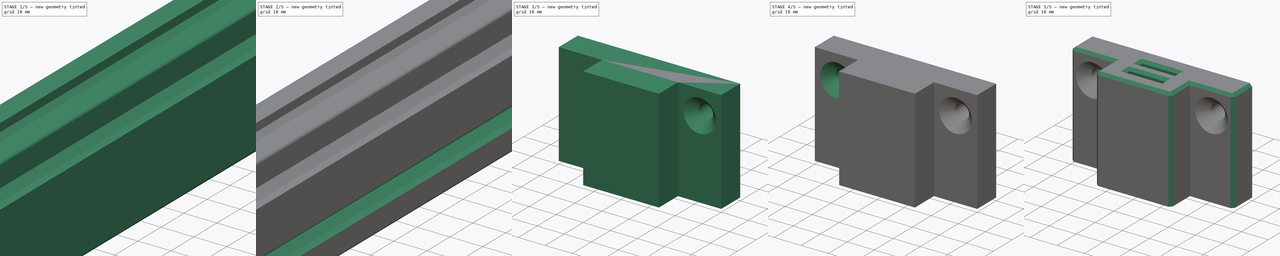
[diagram: build sequence overview — one tinted view per stage of 5, left to right]
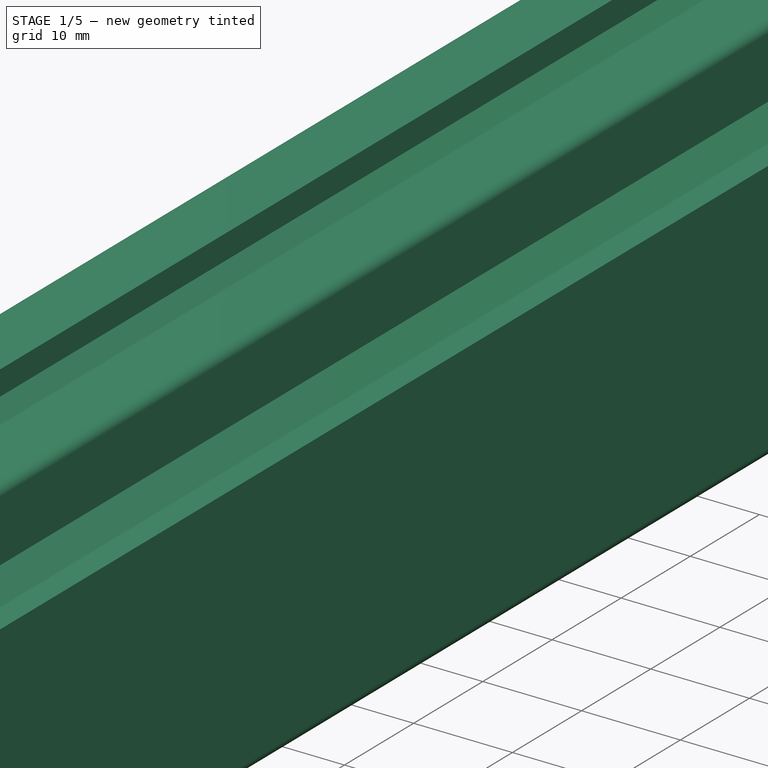
[diagram: stage 1 of 5 — iso view after this stage's code; geometry added in this stage tinted green]
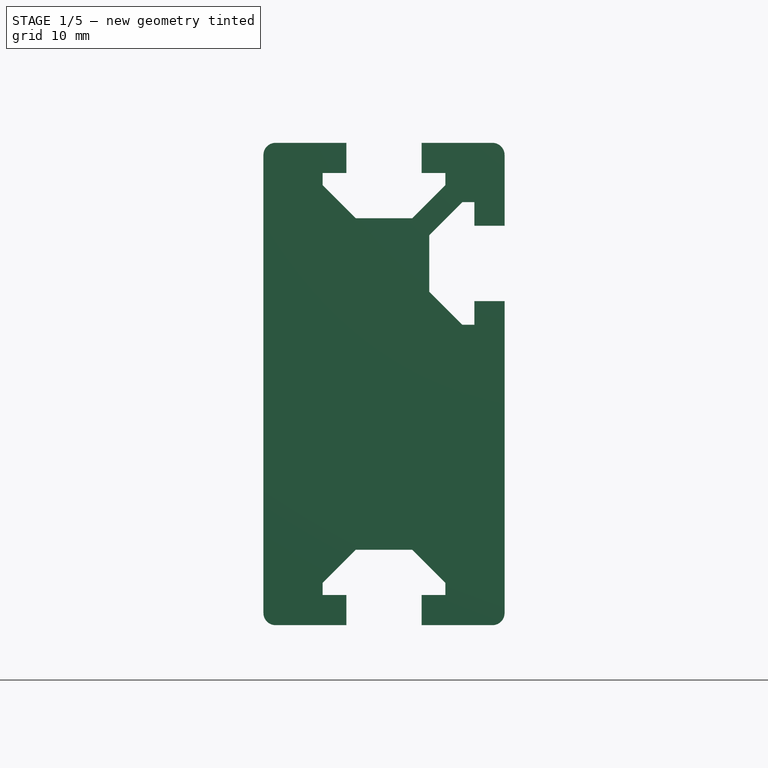
[diagram: stage 1 of 5 — front view after this stage's code; geometry added in this stage tinted green]
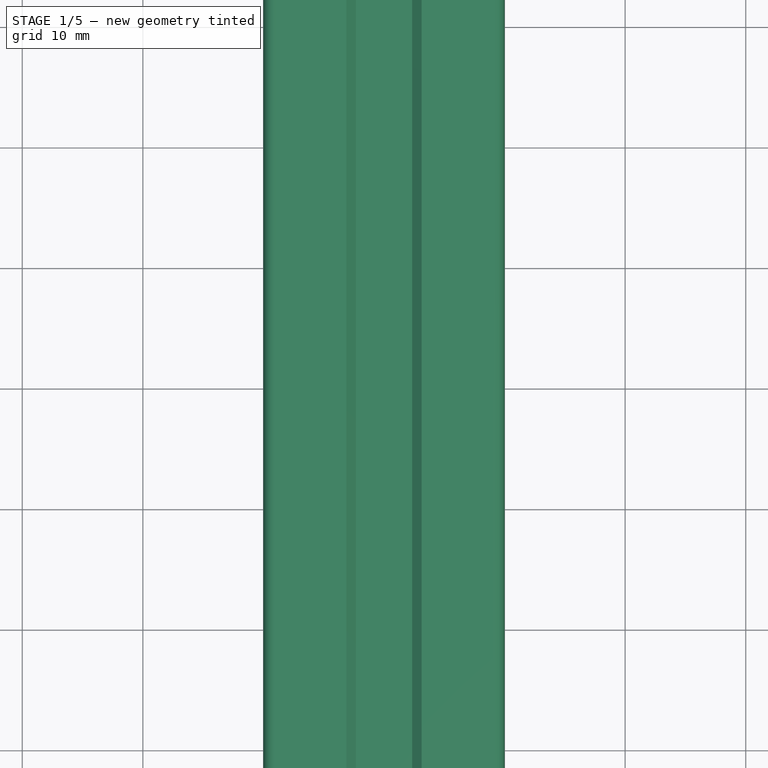
[diagram: stage 1 of 5 — top view after this stage's code; geometry added in this stage tinted green]
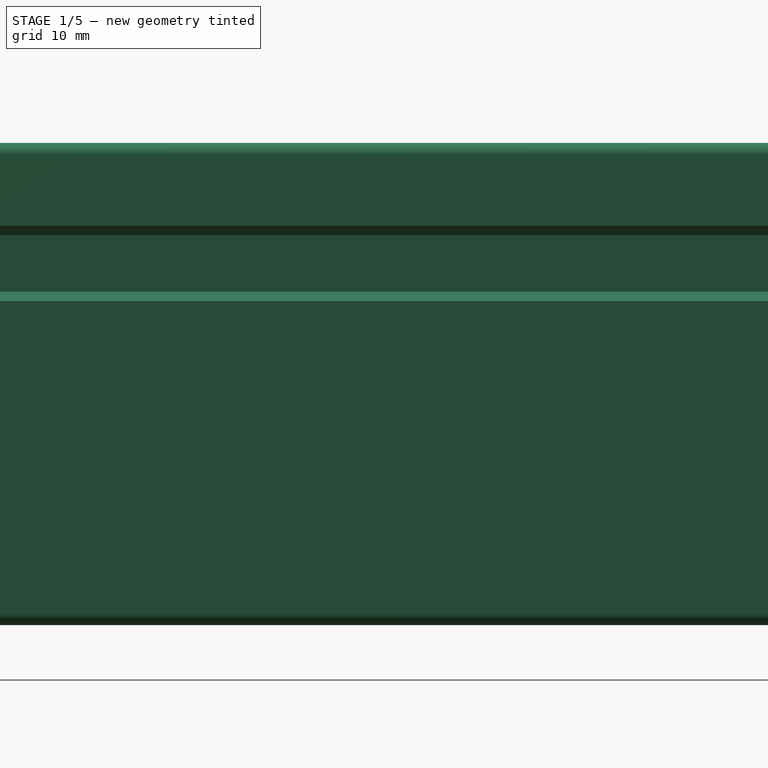
[diagram: stage 1 of 5 — right view after this stage's code; geometry added in this stage tinted green]
FCSTD DOCUMENT  (FreeCAD 1.0R39109 (Git))
Label: tool_holder
License: All rights reserved
LicenseURL: http://en.wikipedia.org/wiki/All_rights_reserved
objects: Sketcher::SketchObject×10, PartDesign::Pocket×6, PartDesign::Mirrored×5, PartDesign::Pad×3, PartDesign::LinearPattern×2, PartDesign::Body×2, PartDesign::Chamfer×2, PartDesign::MultiTransform×1, App::Part×1, PartDesign::SubShapeBinder×1, PartDesign::Hole×1
note: 75 computed .brp shape members not serialized (recipe doc carries the construction recipe); baked Part::Feature solids carry a one-line shape summary decoded from their .brp

FEATURE [Sketcher::SketchObject] Sketch010
  ArcFitTolerance = 0
  AttachmentSupport = -> [XZ_Plane011]
  FullyConstrained = true
  MakeInternals = false
  MapMode = 5
  Placement = pos=(0,0,0) rot=(1,0,0;1.5708rad)
  sketch-geometry (8):
    g0: LineSegment StartX=-9 StartY=20 StartZ=0 EndX=9 EndY=20 EndZ=0
    g1: LineSegment StartX=10 StartY=19 StartZ=0 EndX=10 EndY=-19 EndZ=0
    g2: LineSegment StartX=9 StartY=-20 StartZ=0 EndX=-9 EndY=-20 EndZ=0
    g3: LineSegment StartX=-10 StartY=-19 StartZ=0 EndX=-10 EndY=19 EndZ=0
    g4: ArcOfCircle CenterX=9 CenterY=19 CenterZ=0 NormalX=0 NormalY=0 NormalZ=1 AngleXU=0 Radius=1 StartAngle=-9e-16 EndAngle=1.5708
    g5: ArcOfCircle CenterX=9 CenterY=-19 CenterZ=0 NormalX=0 NormalY=0 NormalZ=1 AngleXU=0 Radius=1 StartAngle=4.71239 EndAngle=6.28319
    g6: ArcOfCircle CenterX=-9 CenterY=-19 CenterZ=0 NormalX=0 NormalY=0 NormalZ=1 AngleXU=0 Radius=1 StartAngle=3.14159 EndAngle=4.71239
    g7: ArcOfCircle CenterX=-9 CenterY=19 CenterZ=0 NormalX=0 NormalY=0 NormalZ=1 AngleXU=0 Radius=1 StartAngle=1.5708 EndAngle=3.14159
  constraints (18):
    c: Horizontal(g0)
    c: Horizontal(g2)
    c: Vertical(g1)
    c: Vertical(g3)
    c: Tangent(g0,g4) = 1.5708
    c: Tangent(g1,g4) = 1.5708
    c: Tangent(g1,g5) = 1.5708
    c: Tangent(g2,g5) = 1.5708
    c: Tangent(g2,g6) = 1.5708
    c: Tangent(g3,g6) = 1.5708
    c: Tangent(g3,g7) = 1.5708
    c: Tangent(g0,g7) = 1.5708
    c: Equal(g5,g6)
    c: Radius(g4) = 1
    c: DistanceX(g3,g1) = 20
    c: DistanceY(g2,g0) = 40
    c: Symmetric(g4,g7,g-2)
    c: Symmetric(g4,g5,g-1)
FEATURE [PartDesign::Pad] Pad004
  AllowMultiFace = false
  Direction = (0,-1,2e-16)
  Length = 300
  Length2 = 100
  Midplane = true
  Placement = pos=(0,0,0) rot=(1,0,0;1.5708rad)
  Profile = -> Sketch010
  Refine = true
  Suppressed = false
  Type = 0
FEATURE [Sketcher::SketchObject] Sketch013
  ArcFitTolerance = 0
  AttachmentSupport = -> [Pad004]
  ExternalGeometry = -> [Pad004]
  FullyConstrained = true
  MakeInternals = false
  MapMode = 5
  Placement = pos=(0,-150,0) rot=(1,0,0;1.5708rad)
  sketch-geometry (15):
    g0: LineSegment StartX=-3.125 StartY=20 StartZ=0 EndX=3.125 EndY=20 EndZ=0
    g1: LineSegment StartX=3.125 StartY=20 StartZ=0 EndX=3.125 EndY=17.5 EndZ=0
    g2: LineSegment StartX=-3.125 StartY=17.5 StartZ=0 EndX=-3.125 EndY=20 EndZ=0
    g3: LineSegment StartX=5.08579 StartY=17.5 StartZ=0 EndX=5.08579 EndY=16.5 EndZ=0
    g4: LineSegment StartX=-5.08579 StartY=16.5 StartZ=0 EndX=-5.08579 EndY=17.5 EndZ=0
    g5: LineSegment StartX=-5.08579 StartY=16.5 StartZ=0 EndX=-2.33579 EndY=13.75 EndZ=0
    g6: LineSegment StartX=-2.33579 StartY=13.75 StartZ=0 EndX=2.33579 EndY=13.75 EndZ=0
    g7: LineSegment StartX=2.33579 StartY=13.75 StartZ=0 EndX=5.08579 EndY=16.5 EndZ=0
    g8: LineSegment StartX=3.125 StartY=17.5 StartZ=0 EndX=5.08579 EndY=17.5 EndZ=0
    g9: LineSegment StartX=-3.125 StartY=17.5 StartZ=0 EndX=-5.08579 EndY=17.5 EndZ=0
    g10: LineSegment [constr] StartX=-3.125 StartY=17.5 StartZ=0 EndX=3.125 EndY=17.5 EndZ=0
    g11: LineSegment [constr] StartX=5.08579 StartY=16.5 StartZ=0 EndX=-5.08579 EndY=16.5 EndZ=0
    g12: LineSegment [constr] StartX=-9 StartY=19 StartZ=0 EndX=0 EndY=10 EndZ=0
    g13: LineSegment [constr] StartX=0 StartY=10 StartZ=0 EndX=9 EndY=19 EndZ=0
    g14: LineSegment [constr] StartX=5.08579 StartY=16.5 StartZ=0 EndX=5.79289 EndY=15.7929 EndZ=0
  constraints (41):
    c: Coincident(g0,g1)
    c: Coincident(g2,g0)
    c: Horizontal(g0)
    c: Vertical(g1)
    c: Vertical(g2)
    c: PointOnObject(g0,g-3)
    c: Vertical(g3)
    c: Vertical(g4)
    c: Coincident(g6,g5)
    c: Horizontal(g6)
    c: Coincident(g7,g6)
    c: Coincident(g7,g3)
    c: Coincident(g8,g1)
    c: Coincident(g8,g3)
    c: Coincident(g9,g2)
    c: Coincident(g9,g4)
    c: Horizontal(g8)
    c: Horizontal(g9)
    c: Coincident(g10,g2)
    c: Coincident(g10,g1)
    c: Coincident(g11,g3)
    c: Coincident(g11,g4)
    c: Horizontal(g11)
    c: DistanceX(g0,g0) = 6.25
    c: DistanceY(g1,g1) = 2.5
    c: DistanceY(g4,g4) = 1
    c: Coincident(g5,g4)
    c: DistanceY(g6,g0) = 6.25
    c: Coincident(g12,g-5)
    c: PointOnObject(g12,g-2)
    c: Coincident(g13,g12)
    c: Coincident(g13,g-4)
    c: DistanceY(g12,g-4) = 10
    c: Parallel(g13,g7)
    c: Parallel(g12,g5)
    c: Coincident(g14,g3)
    c: PointOnObject(g14,g13)
    c: Perpendicular(g7,g14)
    c: Distance(g14) = 1
    c: Equal(g8,g9)
    c: Symmetric(g1,g2,g-2)
FEATURE [PartDesign::Pocket] Pocket007
  AllowMultiFace = false
  BaseFeature = -> Pad004
  Direction = (0,1,-2e-16)
  Length = 5
  Length2 = 100
  Placement = pos=(0,0,0) rot=(1,0,0;1.5708rad)
  Profile = -> Sketch013
  Refine = true
  Suppressed = false
  Type = 1
FEATURE [PartDesign::Mirrored] Mirrored001
  BaseFeature = -> Pocket007
  MirrorPlane = -> XY_Plane011
  Originals = -> [Pocket007]
  Placement = pos=(0,0,0) rot=(1,0,0;1.5708rad)
  Refine = true
  Suppressed = false
  TransformMode = 0
FEATURE [Sketcher::SketchObject] Sketch012
  ArcFitTolerance = 0
  AttachmentSupport = -> [Mirrored001]
  ExternalGeometry = -> [Mirrored001]
  FullyConstrained = true
  MakeInternals = false
  MapMode = 5
  Placement = pos=(0,-150,0) rot=(1,0,0;1.5708rad)
  sketch-geometry (16):
    g0: LineSegment [constr] StartX=9 StartY=19 StartZ=0 EndX=0 EndY=10 EndZ=0
    g1: LineSegment StartX=10 StartY=13.125 StartZ=0 EndX=7.5 EndY=13.125 EndZ=0
    g2: LineSegment StartX=7.5 StartY=6.875 StartZ=0 EndX=10 EndY=6.875 EndZ=0
    g3: LineSegment StartX=10 StartY=6.875 StartZ=0 EndX=10 EndY=13.125 EndZ=0
    g4: LineSegment StartX=7.5 StartY=15.0858 StartZ=0 EndX=6.5 EndY=15.0858 EndZ=0
    g5: LineSegment StartX=6.5 StartY=4.91421 StartZ=0 EndX=7.5 EndY=4.91421 EndZ=0
    g6: LineSegment StartX=7.5 StartY=13.125 StartZ=0 EndX=7.5 EndY=15.0858 EndZ=0
    g7: LineSegment StartX=7.5 StartY=6.875 StartZ=0 EndX=7.5 EndY=4.91421 EndZ=0
    g8: LineSegment StartX=6.5 StartY=15.0858 StartZ=0 EndX=3.75 EndY=12.3358 EndZ=0
    g9: LineSegment StartX=3.75 StartY=12.3358 StartZ=0 EndX=3.75 EndY=7.66421 EndZ=0
    g10: LineSegment StartX=3.75 StartY=7.66421 StartZ=0 EndX=6.5 EndY=4.91421 EndZ=0
    g11: LineSegment [constr] StartX=7.5 StartY=6.875 StartZ=0 EndX=7.5 EndY=13.125 EndZ=0
    g12: LineSegment [constr] StartX=10 StartY=10 StartZ=0 EndX=3.75 EndY=10 EndZ=0
    g13: LineSegment [constr] StartX=6.5 StartY=15.0858 StartZ=0 EndX=5.79289 EndY=15.7929 EndZ=0
    g14: LineSegment [constr] StartX=0 StartY=10 StartZ=0 EndX=10 EndY=4.423e-13 EndZ=0
    g15: LineSegment [constr] StartX=3.75 StartY=7.66421 StartZ=0 EndX=3.04289 EndY=6.95711 EndZ=0
  constraints (45):
    c: Coincident(g0,g-4)
    c: PointOnObject(g0,g-2)
    c: Parallel(g-5,g0)
    c: Coincident(g2,g3)
    c: Coincident(g3,g1)
    c: Horizontal(g1)
    c: Horizontal(g2)
    c: Vertical(g3)
    c: PointOnObject(g1,g-3)
    c: Horizontal(g4)
    c: Horizontal(g5)
    c: Coincident(g6,g1)
    c: Coincident(g6,g4)
    c: Coincident(g7,g2)
    c: Coincident(g7,g5)
    c: Coincident(g9,g8)
    c: Vertical(g9)
    c: Coincident(g10,g9)
    c: Coincident(g11,g2)
    c: Coincident(g11,g1)
    c: Vertical(g6)
    c: Vertical(g7)
    c: Symmetric(g1,g2,g12)
    c: Symmetric(g8,g9,g12)
    c: Parallel(g8,g0)
    c: DistanceY(g3,g3) = 6.25
    c: DistanceX(g9,g2) = 6.25
    c: DistanceX(g4,g4) = 1
    c: Symmetric(g2,g1,g12)
    c: Coincident(g8,g4)
    c: Coincident(g10,g5)
    c: Equal(g4,g5)
    c: Equal(g6,g7)
    c: DistanceX(g1,g1) = 2.5
    c: Coincident(g13,g4)
    c: PointOnObject(g13,g0)
    c: Perpendicular(g13,g8)
    c: Distance(g13) = 1
    c: Coincident(g14,g0)
    c: PointOnObject(g14,g-3)
    c: Perpendicular(g0,g14)
    c: Coincident(g15,g9)
    c: PointOnObject(g15,g14)
    c: Perpendicular(g10,g15)
    c: Distance(g15) = 1
FEATURE [PartDesign::LinearPattern] LinearPattern002
  Direction = -> Sketch012 [V_Axis]
  Length = 20
  Mode = 0
  Occurrences = 2
  Offset = 20
  Placement = pos=(0,0,0) rot=(1,0,0;1.5708rad)
  Refine = true
  Reversed = true
  Suppressed = false
  TransformMode = 0
FEATURE [PartDesign::Mirrored] Mirrored002
  MirrorPlane = -> Sketch012 [V_Axis]
  Placement = pos=(0,0,0) rot=(1,0,0;1.5708rad)
  Refine = true
  Suppressed = false
  TransformMode = 0
FEATURE [PartDesign::Pocket] Pocket005
  AllowMultiFace = false
  BaseFeature = -> Mirrored001
  Direction = (0,1,-2e-16)
  Length = 5
  Length2 = 100
  Placement = pos=(0,0,0) rot=(1,0,0;1.5708rad)
  Profile = -> Sketch012
  Refine = true
  Suppressed = false
  Type = 1
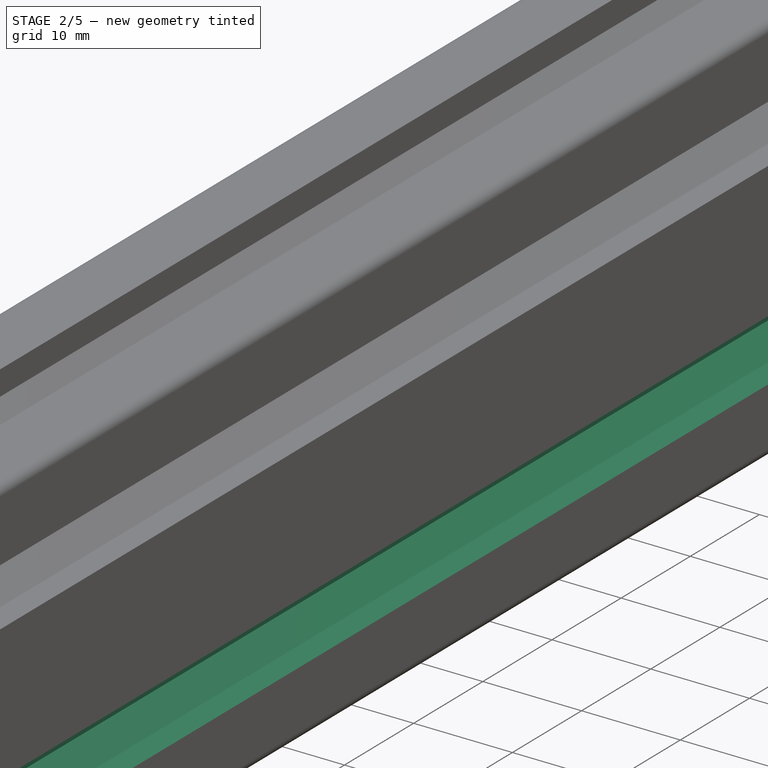
[diagram: stage 2 of 5 — iso view after this stage's code; geometry added in this stage tinted green]
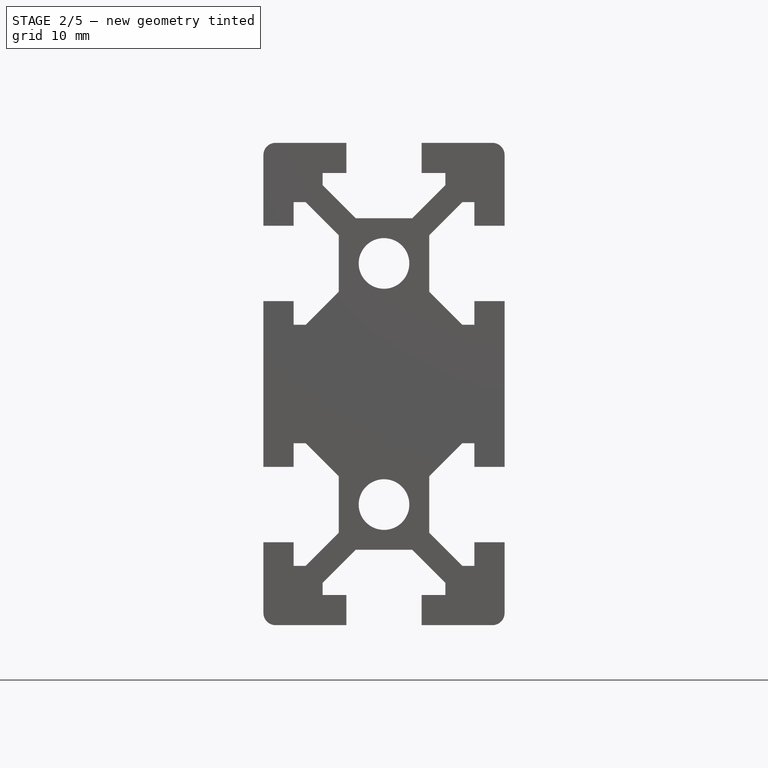
[diagram: stage 2 of 5 — front view after this stage's code; geometry added in this stage tinted green]
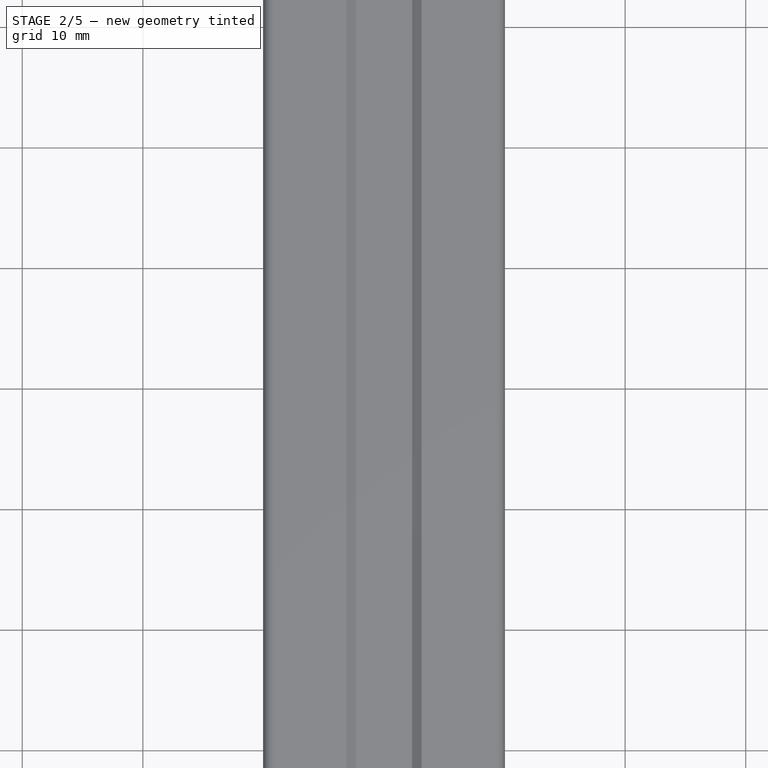
[diagram: stage 2 of 5 — top view after this stage's code; geometry added in this stage tinted green]
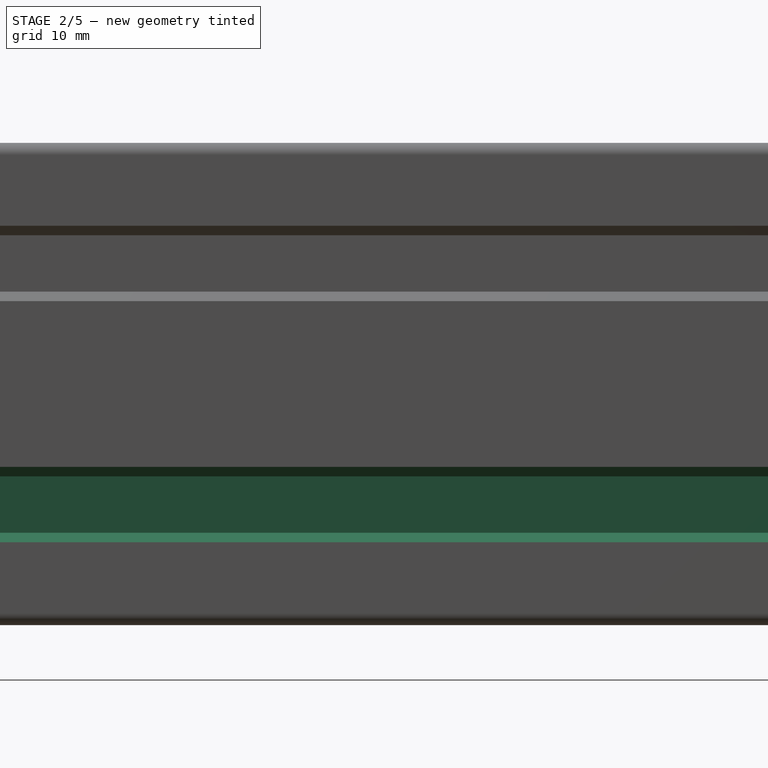
[diagram: stage 2 of 5 — right view after this stage's code; geometry added in this stage tinted green]
FEATURE [PartDesign::MultiTransform] MultiTransform
  BaseFeature = -> Pocket005
  Originals = -> [Pocket005]
  Placement = pos=(0,0,0) rot=(1,0,0;1.5708rad)
  Refine = true
  Suppressed = false
  TransformMode = 0
  Transformations = -> [LinearPattern002,Mirrored002]
FEATURE [Sketcher::SketchObject] Sketch009
  ArcFitTolerance = 0
  AttachmentSupport = -> [MultiTransform]
  ExternalGeometry = -> [MultiTransform]
  FullyConstrained = true
  MakeInternals = false
  MapMode = 5
  Placement = pos=(0,-150,0) rot=(1,0,0;1.5708rad)
  sketch-geometry (3):
    g0: LineSegment [constr] StartX=-9 StartY=19 StartZ=0 EndX=0 EndY=10 EndZ=0
    g1: LineSegment [constr] StartX=0 StartY=10 StartZ=0 EndX=9 EndY=19 EndZ=0
    g2: Circle CenterX=0 CenterY=10 CenterZ=0 NormalX=0 NormalY=0 NormalZ=1 AngleXU=0 Radius=2.1
  constraints (7):
    c: Coincident(g0,g-4)
    c: Coincident(g1,g0)
    c: Coincident(g1,g-3)
    c: PointOnObject(g0,g-2)
    c: Perpendicular(g0,g1)
    c: Coincident(g2,g0)
    c: Diameter(g2) = 4.2
FEATURE [PartDesign::Pocket] Pocket006
  AllowMultiFace = false
  BaseFeature = -> MultiTransform
  Direction = (0,1,-2e-16)
  Length = 5
  Length2 = 100
  Placement = pos=(0,0,0) rot=(1,0,0;1.5708rad)
  Profile = -> Sketch009
  Refine = true
  Suppressed = false
  Type = 1
FEATURE [PartDesign::Mirrored] Mirrored003
  BaseFeature = -> Pocket006
  MirrorPlane = -> Sketch009 [H_Axis]
  Originals = -> [Pocket006]
  Placement = pos=(0,0,0) rot=(1,0,0;1.5708rad)
  Refine = true
  Suppressed = false
  TransformMode = 0
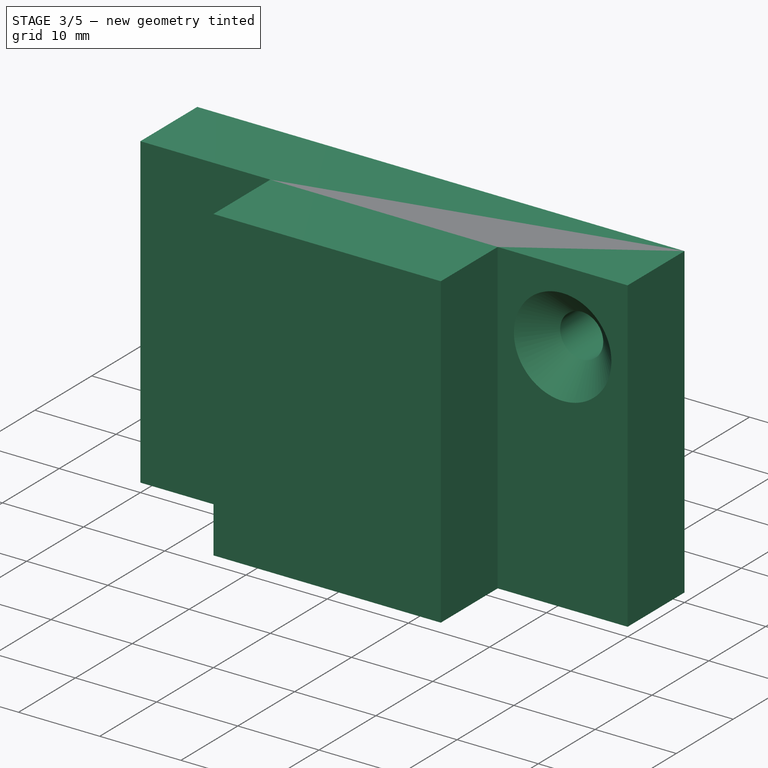
[diagram: stage 3 of 5 — iso view after this stage's code; geometry added in this stage tinted green]
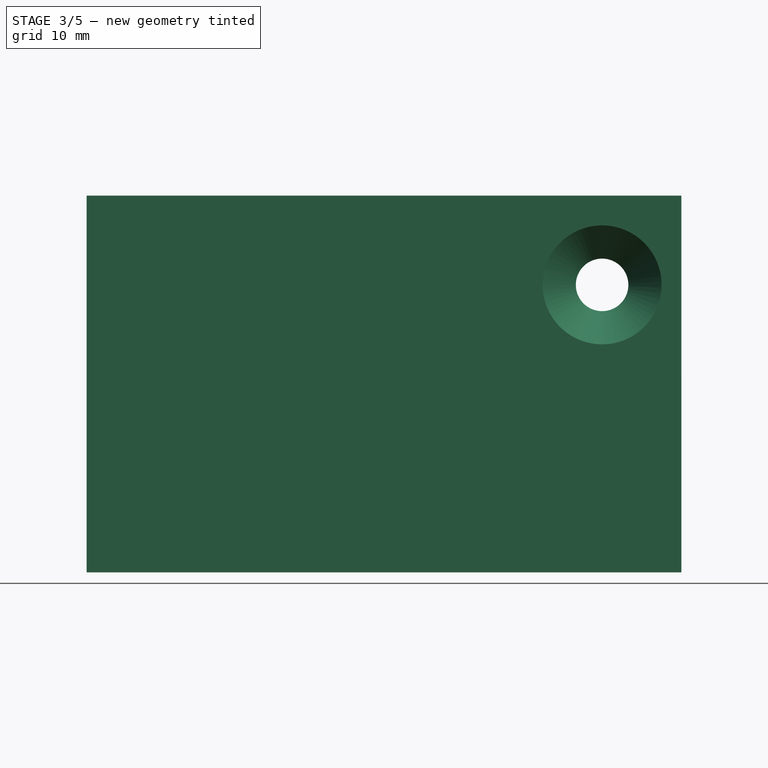
[diagram: stage 3 of 5 — front view after this stage's code; geometry added in this stage tinted green]
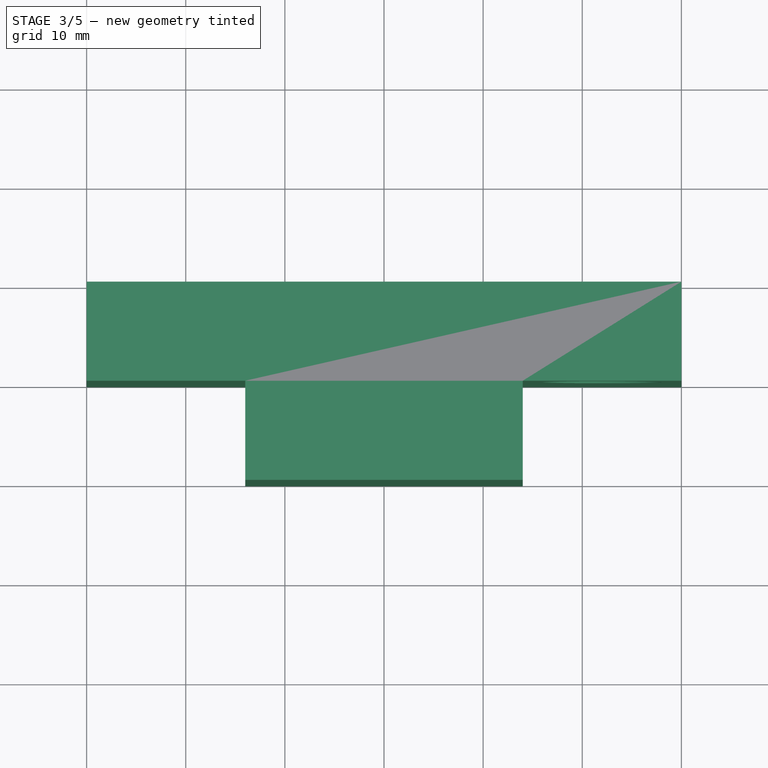
[diagram: stage 3 of 5 — top view after this stage's code; geometry added in this stage tinted green]
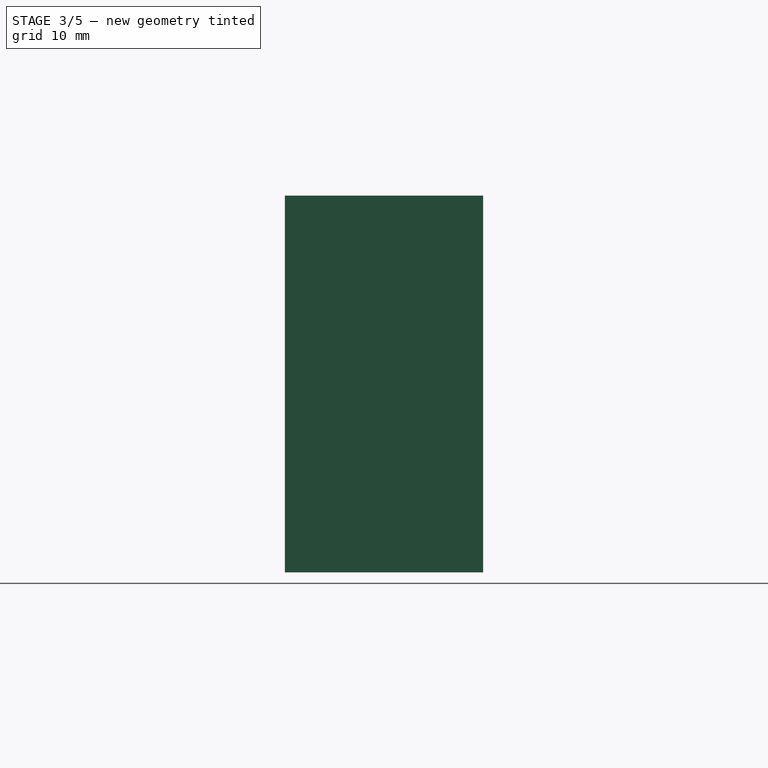
[diagram: stage 3 of 5 — right view after this stage's code; geometry added in this stage tinted green]
FEATURE [Sketcher::SketchObject] Sketch011
  ArcFitTolerance = 0
  AttachmentSupport = -> [Mirrored003]
  ExternalGeometry = -> [Mirrored003]
  FullyConstrained = true
  MakeInternals = false
  MapMode = 5
  Placement = pos=(0,-150,0) rot=(1,0,0;1.5708rad)
  sketch-geometry (11):
    g0: LineSegment StartX=-2.33579 StartY=6.25 StartZ=0 EndX=-6.25 EndY=2.33579 EndZ=0
    g1: LineSegment StartX=-6.25 StartY=2.33579 StartZ=0 EndX=-6.25 EndY=-2.33579 EndZ=0
    g2: LineSegment StartX=-6.25 StartY=-2.33579 StartZ=0 EndX=-2.33579 EndY=-6.25 EndZ=0
    g3: LineSegment StartX=-2.33579 StartY=-6.25 StartZ=0 EndX=2.33579 EndY=-6.25 EndZ=0
    g4: LineSegment StartX=2.33579 StartY=-6.25 StartZ=0 EndX=6.25 EndY=-2.33579 EndZ=0
    g5: LineSegment StartX=6.25 StartY=-2.33579 StartZ=0 EndX=6.25 EndY=2.33579 EndZ=0
    g6: LineSegment StartX=6.25 StartY=2.33579 StartZ=0 EndX=2.33579 EndY=6.25 EndZ=0
    g7: LineSegment StartX=2.33579 StartY=6.25 StartZ=0 EndX=-2.33579 EndY=6.25 EndZ=0
    g8: LineSegment [constr] StartX=-2.33579 StartY=6.25 StartZ=0 EndX=2.33579 EndY=-6.25 EndZ=0
    g9: LineSegment [constr] StartX=-2.33579 StartY=-6.25 StartZ=0 EndX=2.33579 EndY=6.25 EndZ=0
    g10: LineSegment [constr] StartX=-2.33579 StartY=6.25 StartZ=0 EndX=-3.75 EndY=7.66421 EndZ=0
  constraints (31):
    c: Coincident(g1,g0)
    c: Vertical(g1)
    c: Coincident(g2,g1)
    c: Coincident(g3,g2)
    c: Horizontal(g3)
    c: Coincident(g4,g3)
    c: Coincident(g5,g4)
    c: Coincident(g6,g5)
    c: Coincident(g7,g6)
    c: Coincident(g7,g0)
    c: Horizontal(g7)
    c: Vertical(g5)
    c: Parallel(g6,g-4)
    c: Parallel(g0,g-3)
    c: Parallel(g4,g-5)
    c: Equal(g-7,g7)
    c: Equal(g7,g5)
    c: Equal(g5,g3)
    c: Equal(g3,g1)
    c: Equal(g0,g6)
    c: Equal(g6,g4)
    c: Coincident(g8,g0)
    c: Coincident(g8,g3)
    c: Coincident(g9,g2)
    c: Coincident(g9,g6)
    c: PointOnObject(g-1,g9)
    c: PointOnObject(g-1,g8)
    c: Coincident(g10,g0)
    c: PointOnObject(g10,g-3)
    c: Perpendicular(g10,g0)
    c: Distance(g10) = 2
FEATURE [PartDesign::Pocket] Pocket008
  AllowMultiFace = false
  BaseFeature = -> Mirrored003
  Direction = (0,1,-2e-16)
  Length = 5
  Length2 = 100
  Placement = pos=(0,0,0) rot=(1,0,0;1.5708rad)
  Profile = -> Sketch011
  Refine = true
  Suppressed = false
  Type = 1
FEATURE [PartDesign::Body] Body006  label="2040"
  AllowCompound = false
  Group = -> [Sketch010,Pad004,Sketch013,Pocket007,Mirrored001,Sketch012,Pocket005,MultiTransform,LinearPattern002,Mirrored002,Sketch009,Pocket006,Mirrored003,Sketch011,Pocket008]
  Origin = -> Origin011
  Placement = pos=(0,0,0) rot=(0,0,1;1.5708rad)
  Tip = -> Pocket008
FEATURE [App::Part] Part  label="aluminum"
  Group = -> [Body006]
  Origin = -> Origin
FEATURE [PartDesign::SubShapeBinder] Binder
  BindCopyOnChange = 0
  BindMode = 0
  ClaimChildren = false
  Context = -> Body [Binder.]
  Fuse = false
  MakeFace = true
  OffsetFill = false
  OffsetIntersection = false
  OffsetJoinType = 0
  OffsetOpenResult = false
  PartialLoad = false
  Refine = true
  Relative = true
  Support = -> [Part[Body006.Pocket008.Face6,Body006.Pocket008.Face25,Body006.Pocket008.Face45]]
  _Version = 2
FEATURE [Sketcher::SketchObject] Sketch
  ArcFitTolerance = 1e-06
  AttachmentSupport = -> [Binder]
  ExternalGeometry = -> [Binder]
  FullyConstrained = true
  MakeInternals = false
  MapMode = 5
  Placement = pos=(-2.2e-15,-10,0) rot=(1,0,0;1.5708rad)
  sketch-geometry (4):
    g0: LineSegment StartX=-30 StartY=19 StartZ=0 EndX=-30 EndY=-19 EndZ=0
    g1: LineSegment StartX=-30 StartY=-19 StartZ=0 EndX=30 EndY=-19 EndZ=0
    g2: LineSegment StartX=30 StartY=-19 StartZ=0 EndX=30 EndY=19 EndZ=0
    g3: LineSegment StartX=30 StartY=19 StartZ=0 EndX=-30 EndY=19 EndZ=0
  constraints (11):
    c: Coincident(g0,g1)
    c: Coincident(g1,g2)
    c: Coincident(g2,g3)
    c: Coincident(g3,g0)
    c: Vertical(g0)
    c: Vertical(g2)
    c: Horizontal(g1)
    c: PointOnObject(g0,g-3)
    c: DistanceX(g3,g3) = 60
    c: Symmetric(g0,g2,g-2)
    c: PointOnObject(g1,g-4)
FEATURE [PartDesign::Pad] Pad
  Direction = (0,-1,2e-16)
  Length = 10
  Length2 = 10
  Profile = -> Sketch
  ReferenceAxis = -> Sketch [N_Axis]
  Refine = true
  Suppressed = false
  Type = 0
FEATURE [Sketcher::SketchObject] Sketch014
  ArcFitTolerance = 1e-06
  AttachmentSupport = -> [Pad]
  ExternalGeometry = -> [Pad]
  FullyConstrained = true
  MakeInternals = false
  MapMode = 5
  Placement = pos=(0,-20,0) rot=(1,0,0;1.5708rad)
  sketch-geometry (4):
    g0: LineSegment StartX=-14 StartY=19 StartZ=0 EndX=-14 EndY=-19 EndZ=0
    g1: LineSegment StartX=-14 StartY=-19 StartZ=0 EndX=14 EndY=-19 EndZ=0
    g2: LineSegment StartX=14 StartY=-19 StartZ=0 EndX=14 EndY=19 EndZ=0
    g3: LineSegment StartX=14 StartY=19 StartZ=0 EndX=-14 EndY=19 EndZ=0
  constraints (12):
    c: Coincident(g0,g1)
    c: Coincident(g1,g2)
    c: Coincident(g2,g3)
    c: Coincident(g3,g0)
    c: Vertical(g0)
    c: Vertical(g2)
    c: Horizontal(g1)
    c: PointOnObject(g0,g-3)
    c: PointOnObject(g1,g-4)
    c: Symmetric(g0,g2,g-2)
    c: DistanceX(g2,g-3) = 16
    c: DistanceX(g3,g3) = 28  'pad_width'
FEATURE [PartDesign::Pad] Pad005
  BaseFeature = -> Pad
  Direction = (0,-1,2e-16)
  Length = 10
  Length2 = 10
  Profile = -> Sketch014
  ReferenceAxis = -> Sketch014 [N_Axis]
  Refine = true
  Suppressed = false
  Type = 0
FEATURE [Sketcher::SketchObject] Sketch015
  ArcFitTolerance = 1e-06
  AttachmentSupport = -> [Pad005]
  ExternalGeometry = -> [Binder,Pad005]
  FullyConstrained = true
  MakeInternals = false
  MapMode = 5
  Placement = pos=(0,-20,0) rot=(1,0,0;1.5708rad)
  sketch-geometry (3):
    g0: Circle CenterX=22 CenterY=10 CenterZ=0 NormalX=0 NormalY=0 NormalZ=1 AngleXU=0 Radius=5
    g1: LineSegment [constr] StartX=22 StartY=13.125 StartZ=0 EndX=22 EndY=6.875 EndZ=0
    g2: LineSegment [constr] StartX=14 StartY=10 StartZ=0 EndX=30 EndY=10 EndZ=0
  constraints (9):
    c: Diameter(g0) = 10
    c: PointOnObject(g1,g-3)
    c: PointOnObject(g1,g-4)
    c: Vertical(g1)
    c: Symmetric(g1,g1,g0)
    c: PointOnObject(g2,g-5)
    c: PointOnObject(g2,g-6)
    c: Horizontal(g2)
    c: Symmetric(g2,g2,g0)
FEATURE [PartDesign::Hole] Hole
  BaseFeature = -> Pad005
  CustomThreadClearance = 0
  Depth = 174.581
  DepthType = 1
  Diameter = 5.3
  DrillForDepth = false
  DrillPoint = 1
  DrillPointAngle = 118
  HoleCutCountersinkAngle = 90
  HoleCutCustomValues = false
  HoleCutDepth = 0
  HoleCutDiameter = 12
  HoleCutType = 2
  ModelThread = false
  Profile = -> Sketch015
  Refine = true
  Suppressed = false
  Tapered = false
  TaperedAngle = 90
  ThreadClass = 0
  ThreadDepth = 174.581
  ThreadDepthType = 0
  ThreadDirection = 0
  ThreadFit = 0
  ThreadSize = 0
  ThreadType = 0
  Threaded = false
  UseCustomThreadClearance = false
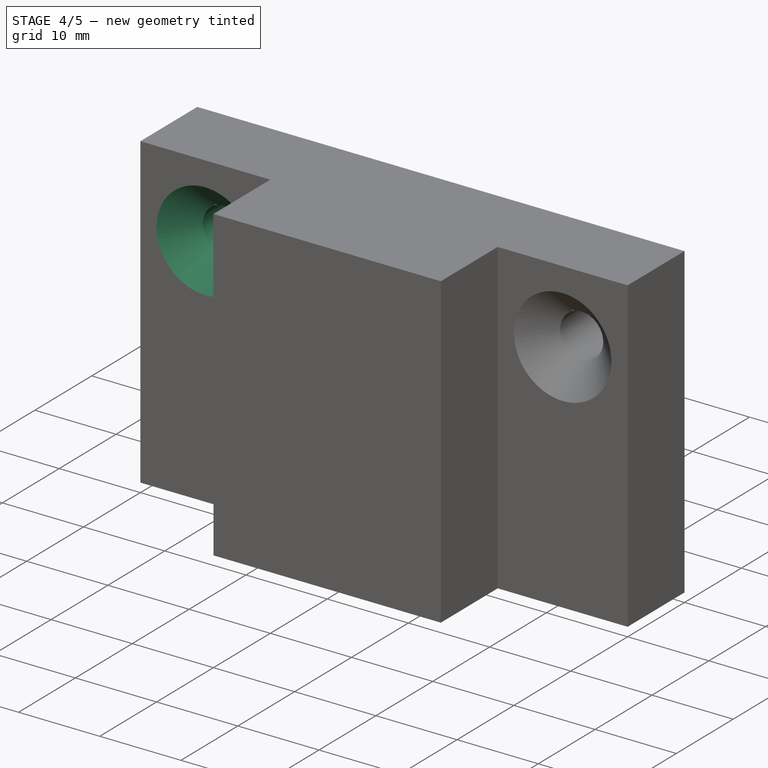
[diagram: stage 4 of 5 — iso view after this stage's code; geometry added in this stage tinted green]
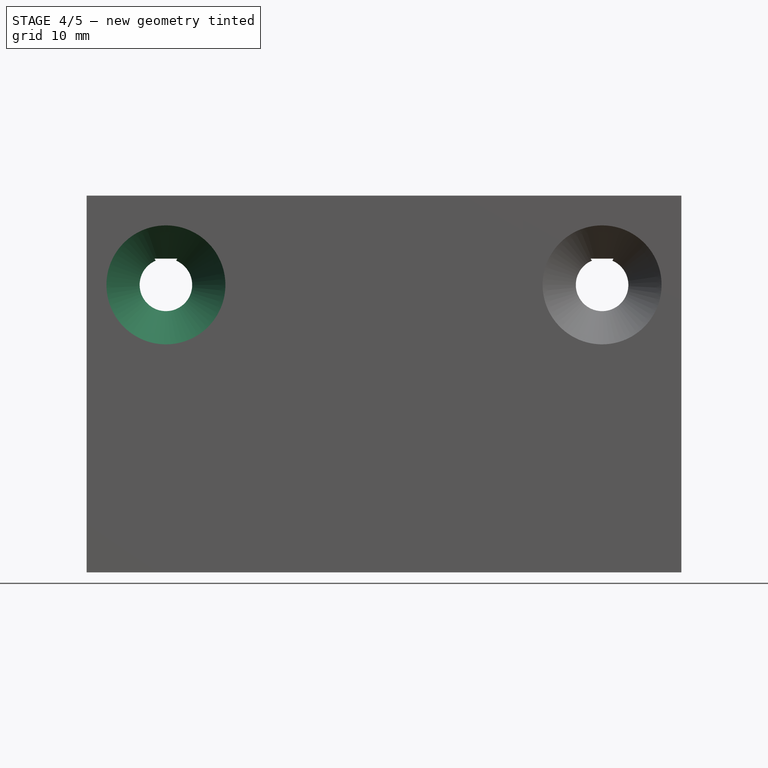
[diagram: stage 4 of 5 — front view after this stage's code; geometry added in this stage tinted green]
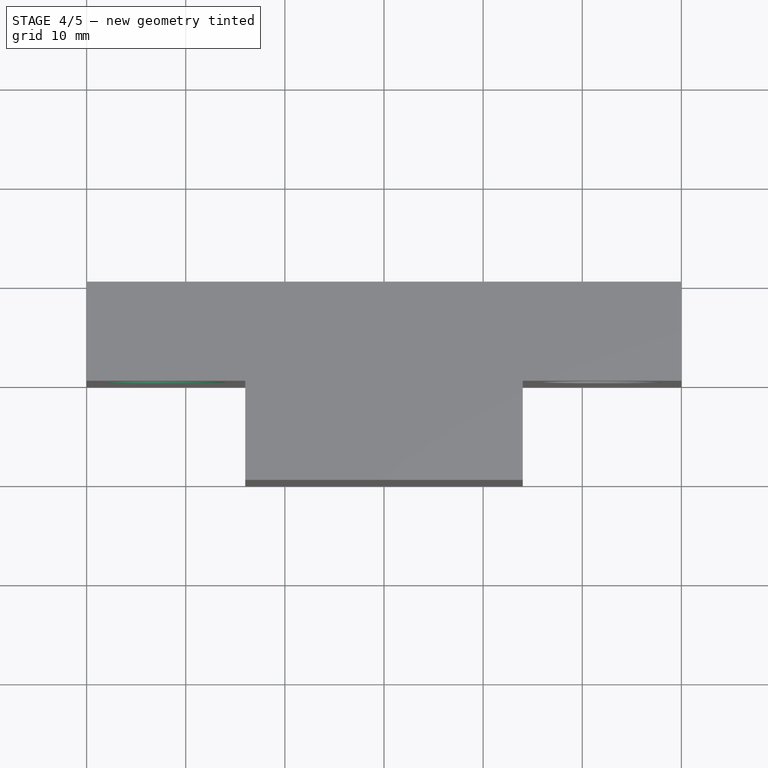
[diagram: stage 4 of 5 — top view after this stage's code; geometry added in this stage tinted green]
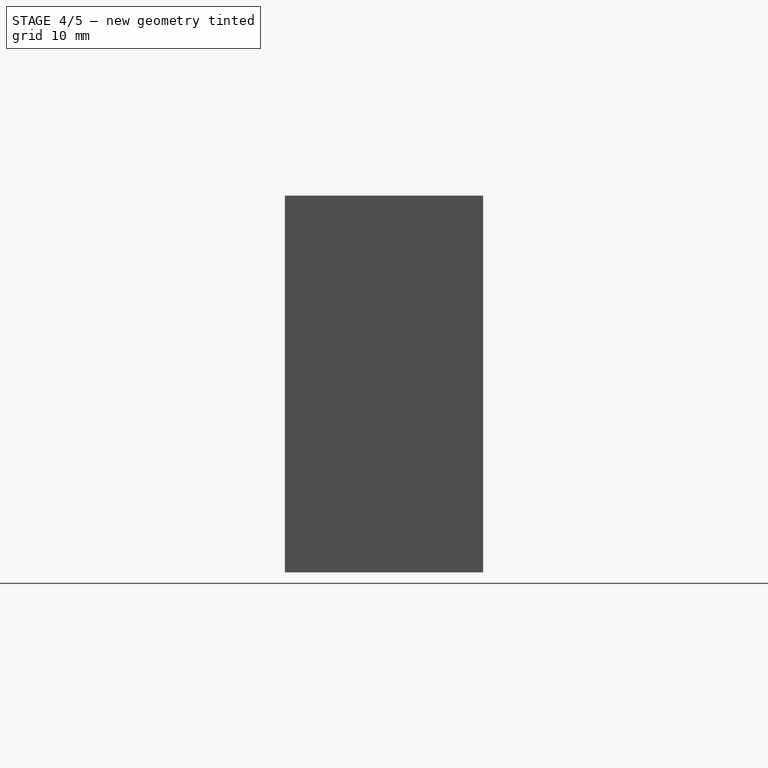
[diagram: stage 4 of 5 — right view after this stage's code; geometry added in this stage tinted green]
FEATURE [PartDesign::Mirrored] Mirrored
  BaseFeature = -> Hole
  MirrorPlane = -> Sketch015 [V_Axis]
  Originals = -> [Hole]
  Refine = true
  Suppressed = false
  TransformMode = 0
FEATURE [Sketcher::SketchObject] Sketch016
  ArcFitTolerance = 1e-06
  AttachmentSupport = -> [Mirrored]
  ExternalGeometry = -> [Mirrored]
  FullyConstrained = true
  MakeInternals = false
  MapMode = 5
  Placement = pos=(0,-10,0) rot=(0,0.707107,0.707107;3.14159rad)
  sketch-geometry (5):
    g0: LineSegment StartX=20.4 StartY=7.88754 StartZ=0 EndX=23.6 EndY=7.88754 EndZ=0
    g1: LineSegment StartX=23.6 StartY=7.88754 StartZ=0 EndX=20.8504 EndY=12.65 EndZ=0
    g2: LineSegment StartX=20.8504 StartY=12.65 StartZ=0 EndX=23.1496 EndY=12.65 EndZ=0
    g3: LineSegment StartX=23.1496 StartY=12.65 StartZ=0 EndX=20.4 EndY=7.88754 EndZ=0
    g4: LineSegment [constr] StartX=22 StartY=10 StartZ=0 EndX=22 EndY=12.65 EndZ=0
  constraints (14):
    c: PointOnObject(g0,g-3)
    c: PointOnObject(g0,g-3)
    c: Horizontal(g0)
    c: Coincident(g0,g1)
    c: Coincident(g1,g2)
    c: Horizontal(g2)
    c: Coincident(g2,g3)
    c: Coincident(g3,g0)
    c: Coincident(g4,g-3)
    c: Vertical(g4)
    c: Symmetric(g2,g1,g4)
    c: DistanceX(g0,g0) = 3.2
    c: Angle(g1,g0) = 1.0472
    c: Tangent(g2,g-3)
FEATURE [PartDesign::Pocket] Pocket
  BaseFeature = -> Mirrored
  Direction = (0,-1,2e-16)
  Length = 5
  Length2 = 5
  Profile = -> Sketch016
  ReferenceAxis = -> Sketch016 [N_Axis]
  Refine = true
  Suppressed = false
  Type = 1
FEATURE [PartDesign::Mirrored] Mirrored004
  BaseFeature = -> Pocket
  MirrorPlane = -> Sketch016 [V_Axis]
  Originals = -> [Pocket]
  Refine = true
  Suppressed = false
  TransformMode = 0
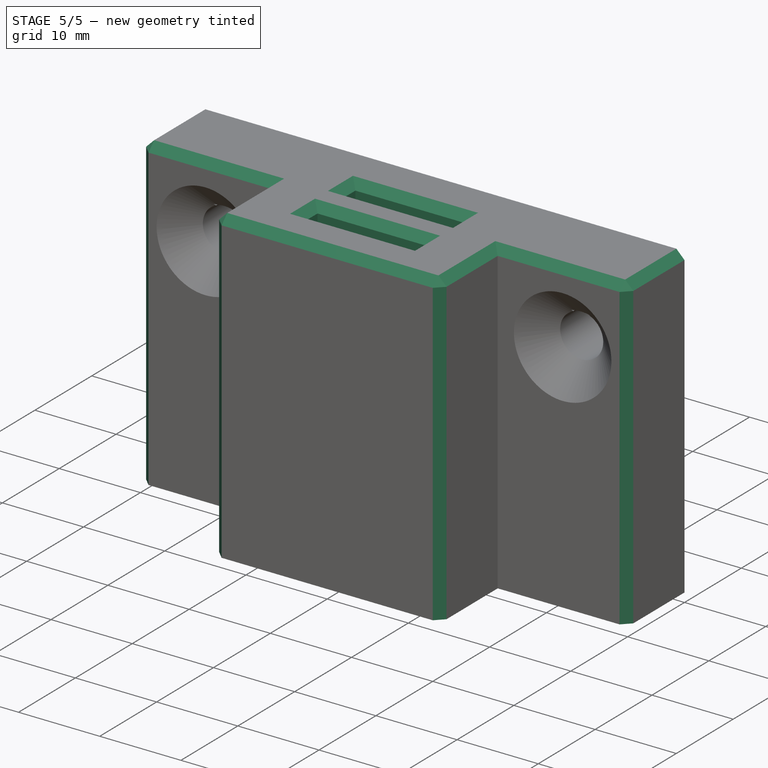
[diagram: stage 5 of 5 — iso view after this stage's code; geometry added in this stage tinted green]
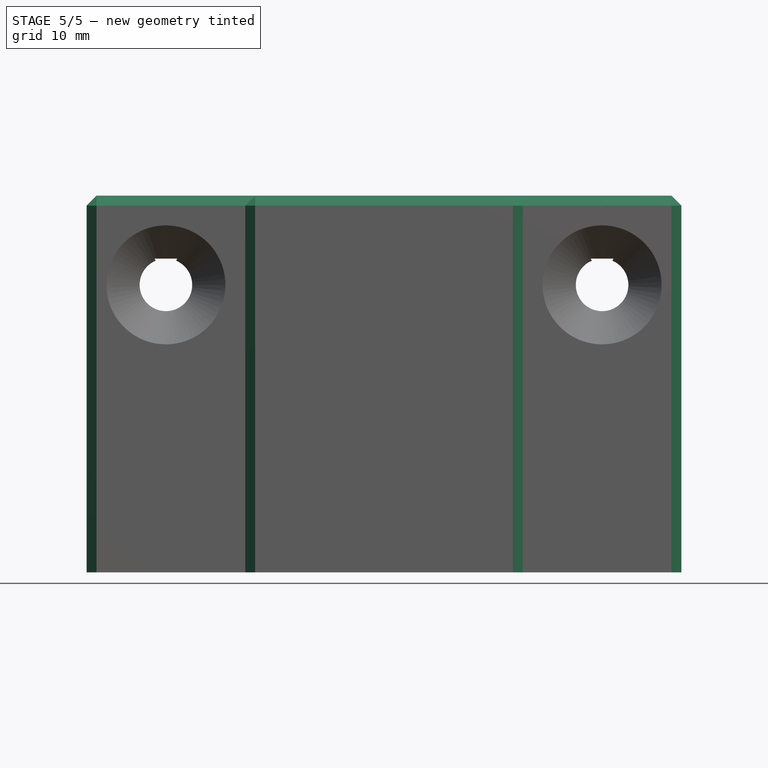
[diagram: stage 5 of 5 — front view after this stage's code; geometry added in this stage tinted green]
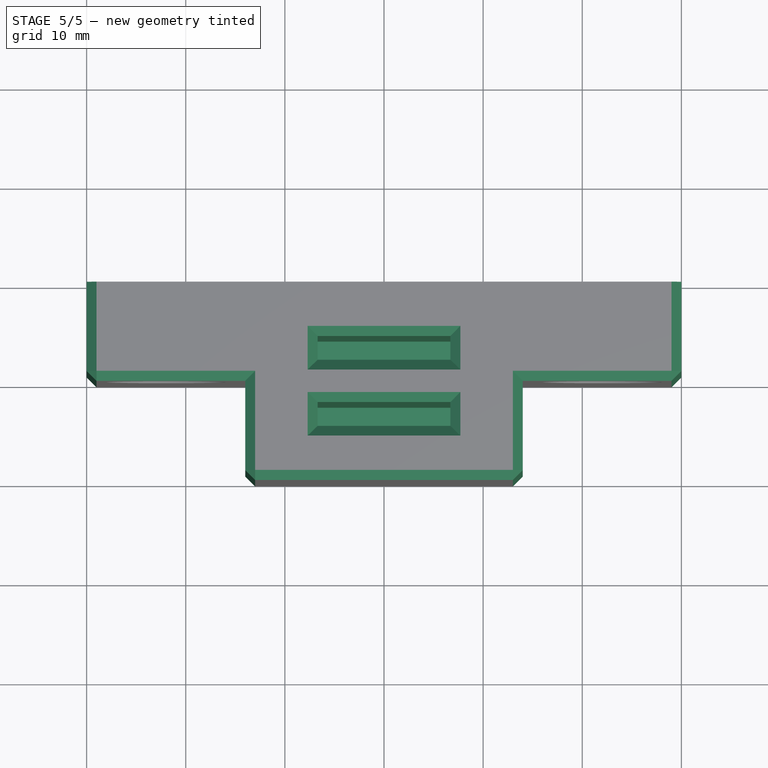
[diagram: stage 5 of 5 — top view after this stage's code; geometry added in this stage tinted green]
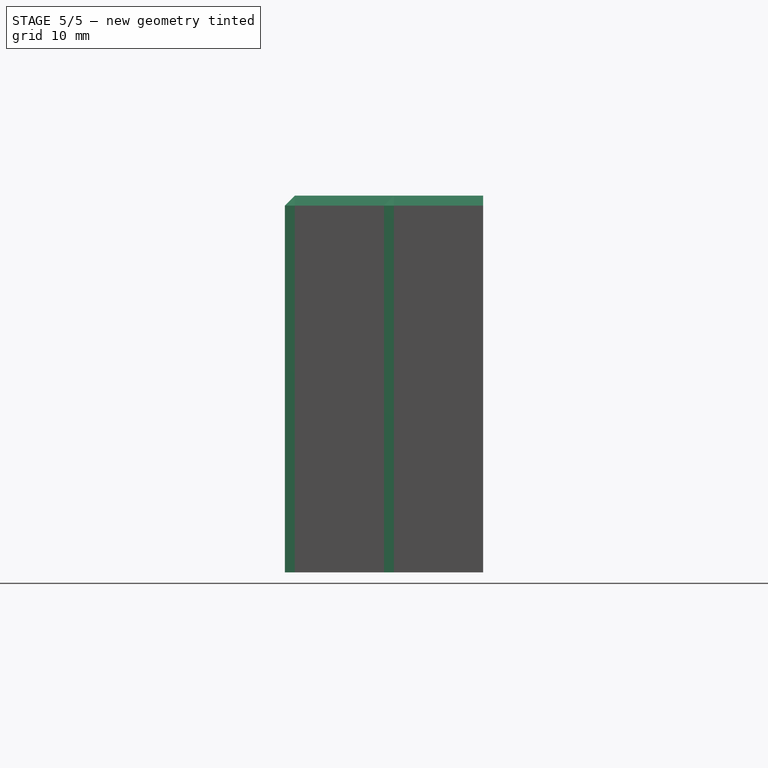
[diagram: stage 5 of 5 — right view after this stage's code; geometry added in this stage tinted green]
FEATURE [Sketcher::SketchObject] Sketch018
  ArcFitTolerance = 1e-06
  AttachmentSupport = -> [Mirrored004]
  ExternalGeometry = -> [Mirrored004]
  FullyConstrained = true
  MakeInternals = false
  MapMode = 5
  Placement = pos=(0,9.9e-15,19) rot=(0,0,1;0rad)
  expr: .Constraints.third = (Pad.Length + Pad005.Length) / 3
  sketch-geometry (5):
    g0: LineSegment StartX=-6.7 StartY=-15.4667 StartZ=0 EndX=-6.7 EndY=-17.8667 EndZ=0
    g1: LineSegment StartX=-6.7 StartY=-17.8667 StartZ=0 EndX=6.7 EndY=-17.8667 EndZ=0
    g2: LineSegment StartX=6.7 StartY=-17.8667 StartZ=0 EndX=6.7 EndY=-15.4667 EndZ=0
    g3: LineSegment StartX=6.7 StartY=-15.4667 StartZ=0 EndX=-6.7 EndY=-15.4667 EndZ=0
    g4: LineSegment [constr] StartX=-6.7 StartY=-16.6667 StartZ=0 EndX=6.7 EndY=-16.6667 EndZ=0
  constraints (13):
    c: Coincident(g0,g1)
    c: Coincident(g1,g2)
    c: Coincident(g2,g3)
    c: Coincident(g3,g0)
    c: Vertical(g0)
    c: Vertical(g2)
    c: Horizontal(g1)
    c: Symmetric(g0,g0,g4)
    c: Symmetric(g2,g2,g4)
    c: DistanceY(g4,g-3) = 6.66667  'third'
    c: DistanceX(g3,g3) = 13.4
    c: Distance(g0,g0) = 2.4
    c: Symmetric(g2,g0,g-2)
FEATURE [PartDesign::Pocket] Pocket009
  BaseFeature = -> Mirrored004
  Direction = (0,0,-1)
  Length = 0
  Length2 = 5
  Offset = -4
  Profile = -> Sketch018
  ReferenceAxis = -> Sketch018 [N_Axis]
  Refine = true
  Suppressed = false
  Type = 3
  UpToFace = -> Mirrored004 [Face3]
FEATURE [PartDesign::LinearPattern] LinearPattern
  BaseFeature = -> Pocket009
  Direction = -> Sketch018 [V_Axis]
  Length = 13.3333
  Mode = 1
  Occurrences = 2
  Offset = 6.66667
  Originals = -> [Pocket009]
  Refine = true
  Reversed = true
  Suppressed = false
  TransformMode = 0
  expr: Length = (Pad.Length + Pad005.Length) / 3 * 2
  expr: Offset = Sketch018.Constraints.third
FEATURE [PartDesign::Chamfer] Chamfer
  Angle = 45
  Base = -> LinearPattern [Edge44,Edge47,Edge48,Edge4,Edge1,Edge9,Edge11,Edge10,Edge8,Edge7,Edge5]
  BaseFeature = -> LinearPattern
  ChamferType = 0
  FlipDirection = false
  Refine = true
  Size = 1
  Size2 = 1
  SupportTransform = false
  Suppressed = false
  UseAllEdges = false
FEATURE [PartDesign::Chamfer] Chamfer001
  Angle = 45
  Base = -> Chamfer [Edge69,Edge70,Edge67,Edge65,Edge68,Edge71,Edge66,Edge64]
  BaseFeature = -> Chamfer
  ChamferType = 0
  FlipDirection = false
  Refine = true
  Size = 1
  Size2 = 1
  SupportTransform = false
  Suppressed = false
  UseAllEdges = false
FEATURE [PartDesign::Body] Body  label="tool_holder"
  AllowCompound = false
  Group = -> [Binder,Sketch,Pad,Sketch014,Pad005,Sketch015,Hole,Mirrored,Sketch016,Pocket,Mirrored004,Sketch018,Pocket009,LinearPattern,Chamfer,Chamfer001]
  Origin = -> Origin012
  Tip = -> Chamfer001
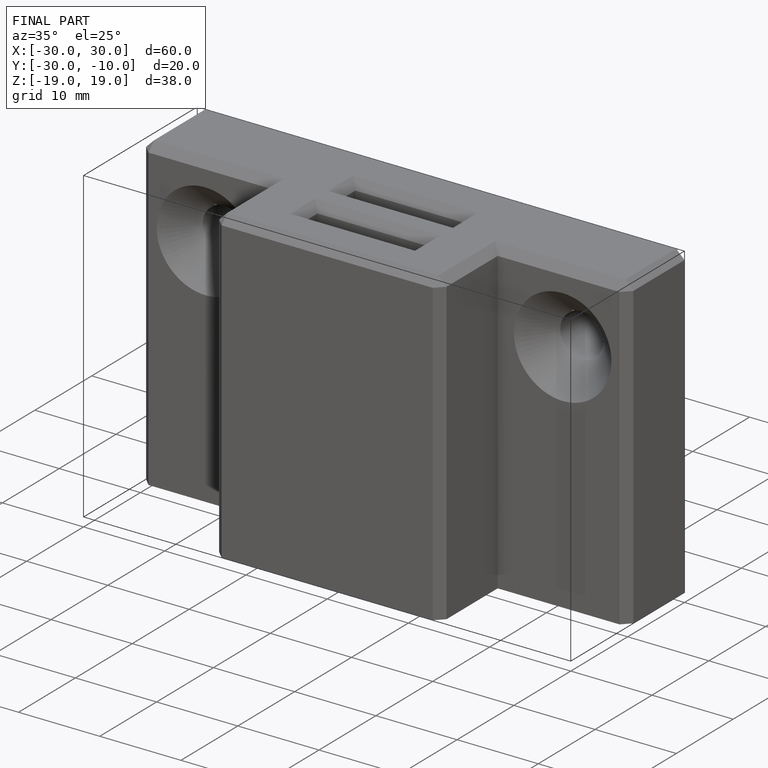
[diagram: finished part — iso view with bounding-box wireframe]
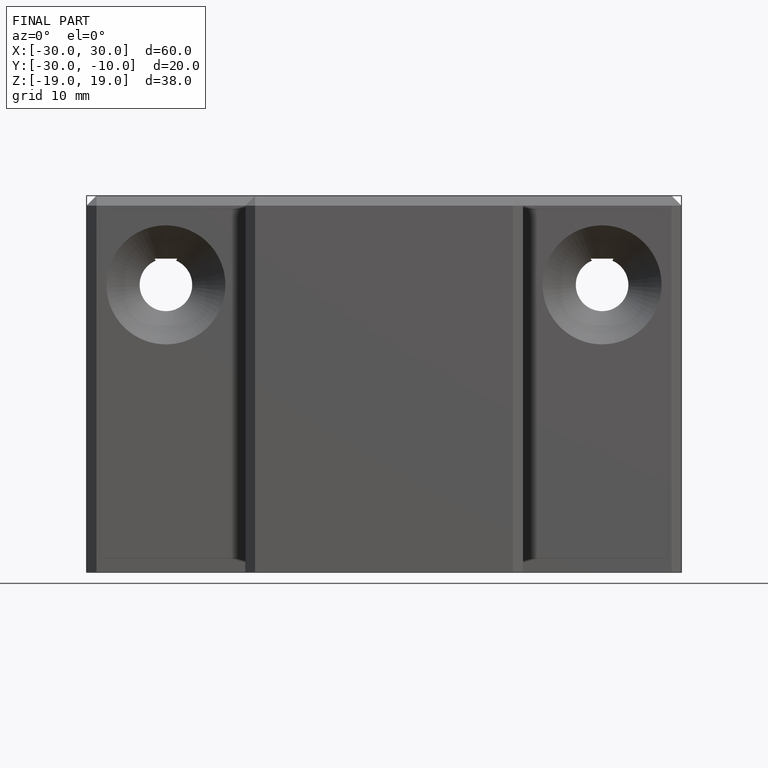
[diagram: finished part — front view with bounding-box wireframe]
